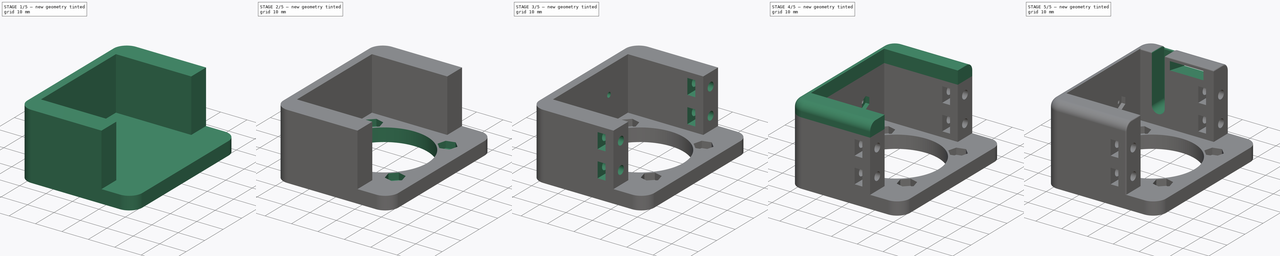
[diagram: build sequence overview — one tinted view per stage of 5, left to right]
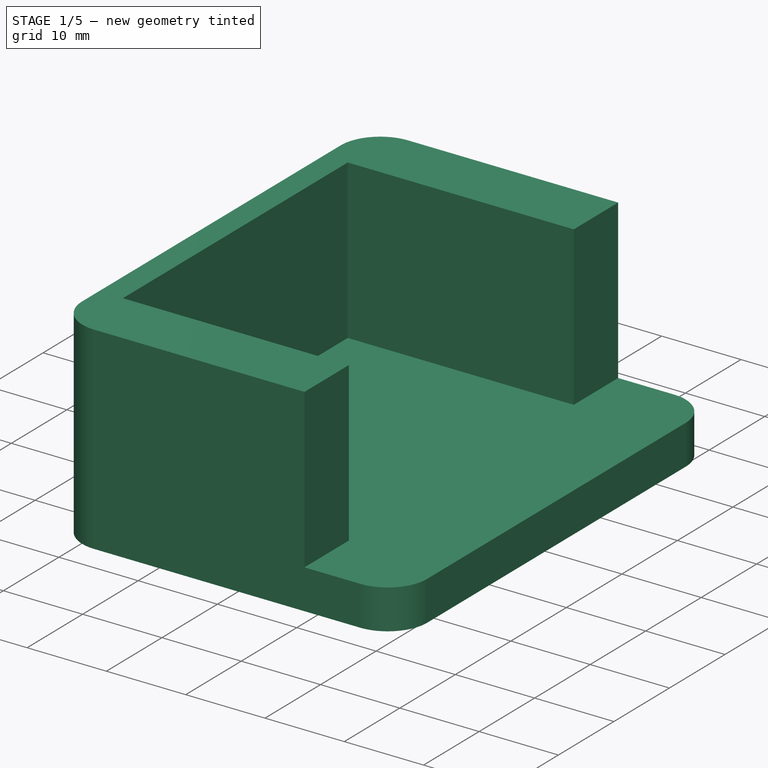
[diagram: stage 1 of 5 — iso view after this stage's code; geometry added in this stage tinted green]
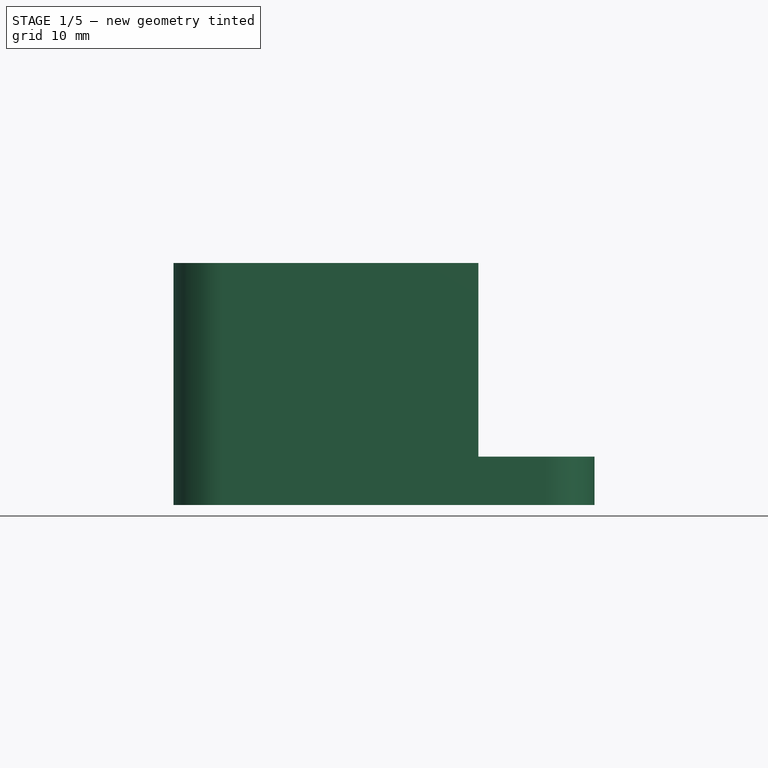
[diagram: stage 1 of 5 — front view after this stage's code; geometry added in this stage tinted green]
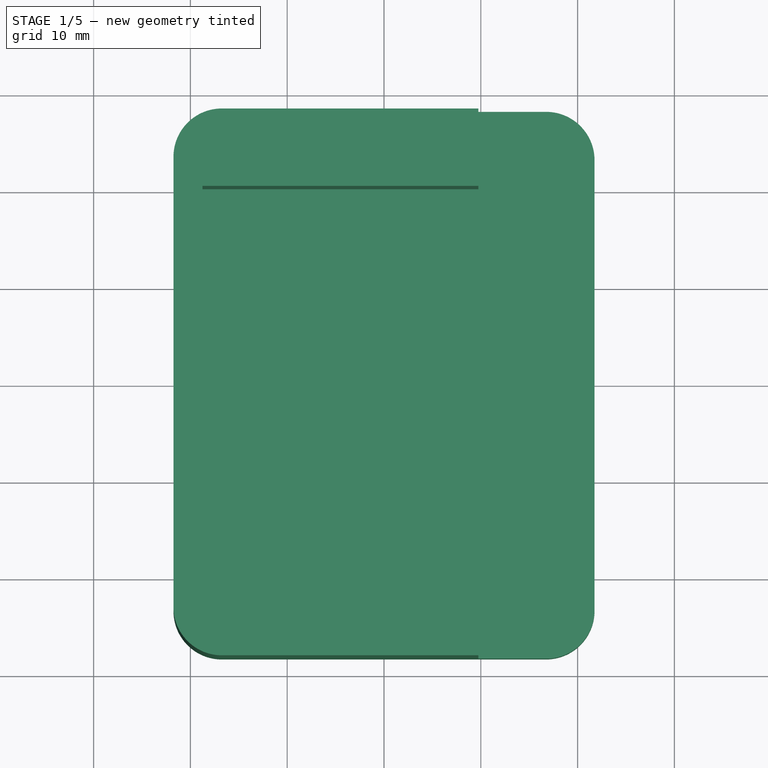
[diagram: stage 1 of 5 — top view after this stage's code; geometry added in this stage tinted green]
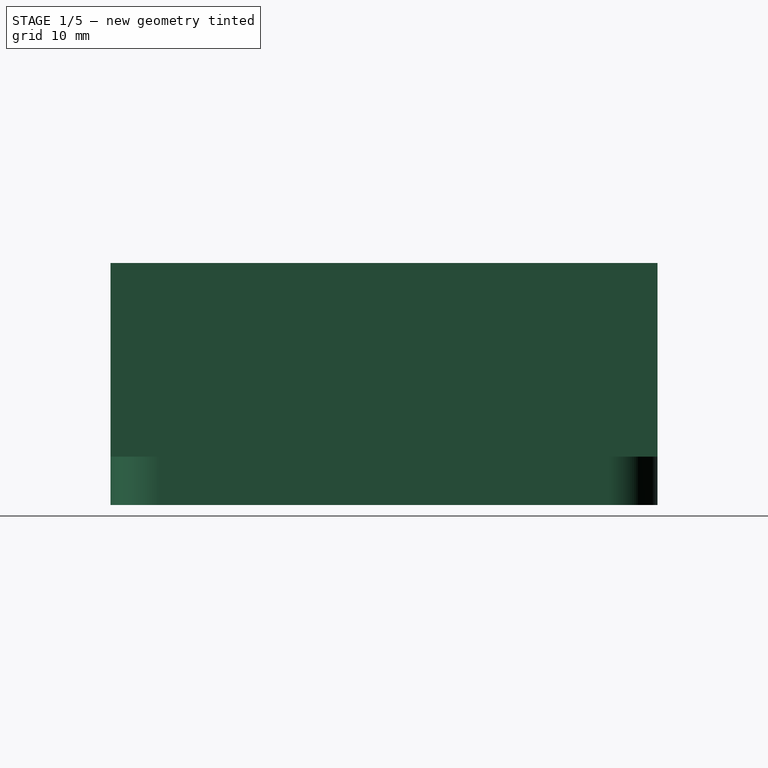
[diagram: stage 1 of 5 — right view after this stage's code; geometry added in this stage tinted green]
FCSTD DOCUMENT  (FreeCAD 0.18R4 (GitTag))
Label: Shoulder_Joint_Servomount
License: All rights reserved
LicenseURL: http://en.wikipedia.org/wiki/All_rights_reserved
objects: Sketcher::SketchObject×11, PartDesign::Pocket×10, PartDesign::Pad×3, PartDesign::Fillet×2, PartDesign::Body×1
note: 40 computed .brp shape members not serialized (recipe doc carries the construction recipe); baked Part::Feature solids carry a one-line shape summary decoded from their .brp

FEATURE [Sketcher::SketchObject] Sketch023
  MapMode = 5
  Support = -> [XY_Plane005]
  sketch-geometry (8):
    g0: LineSegment StartX=-16.75 StartY=28.25 StartZ=0 EndX=16.75 EndY=28.25 EndZ=0
    g1: LineSegment StartX=21.75 StartY=23.25 StartZ=0 EndX=21.75 EndY=-23.25 EndZ=0
    g2: LineSegment StartX=16.75 StartY=-28.25 StartZ=0 EndX=-16.75 EndY=-28.25 EndZ=0
    g3: LineSegment StartX=-21.75 StartY=-23.25 StartZ=0 EndX=-21.75 EndY=23.25 EndZ=0
    g4: ArcOfCircle CenterX=-16.75 CenterY=23.25 CenterZ=0 NormalX=0 NormalY=0 NormalZ=1 AngleXU=0 Radius=5 StartAngle=1.5708 EndAngle=3.14159
    g5: ArcOfCircle CenterX=16.75 CenterY=23.25 CenterZ=0 NormalX=0 NormalY=0 NormalZ=1 AngleXU=0 Radius=5 StartAngle=1e-16 EndAngle=1.5708
    g6: ArcOfCircle CenterX=16.75 CenterY=-23.25 CenterZ=0 NormalX=0 NormalY=0 NormalZ=1 AngleXU=0 Radius=5 StartAngle=4.71239 EndAngle=6.28319
    g7: ArcOfCircle CenterX=-16.75 CenterY=-23.25 CenterZ=0 NormalX=0 NormalY=0 NormalZ=1 AngleXU=0 Radius=5 StartAngle=3.14159 EndAngle=4.71239
  constraints (18):
    c: Horizontal(g2)
    c: Vertical(g1)
    c: Tangent(g3,g4) = 1.5708
    c: Tangent(g0,g4) = 1.5708
    c: Tangent(g0,g5) = 1.5708
    c: Tangent(g1,g5) = 1.5708
    c: Tangent(g1,g6) = 1.5708
    c: Tangent(g2,g6) = 1.5708
    c: Tangent(g2,g7) = 1.5708
    c: Tangent(g3,g7) = 1.5708
    c: Equal(g4,g5)
    c: Equal(g5,g7)
    c: Equal(g7,g6)
    c: Radius(g5) = 5
    c: DistanceY(g2,g0) = 56.5
    c: DistanceX(g3,g1) = 43.5
    c: Symmetric(g0,g0,g-2)
    c: Symmetric(g3,g3,g-1)
FEATURE [PartDesign::Pad] Pad004  label="Baseplate002"
  Length = 5
  Length2 = 100
  Profile = -> Sketch023
  Type = 0
FEATURE [PartDesign::Pad] Pad003  label="Baseplate Expansion"
  BaseFeature = -> Pad004
  Length = 20
  Length2 = 100
  Profile = -> Pad004 [Face10]
  Type = 0
FEATURE [Sketcher::SketchObject] Sketch026
  MapMode = 5
  Placement = pos=(0,0,25) rot=(0,0,1;0rad)
  Support = -> [Pad003]
  sketch-geometry (8):
    g0: LineSegment StartX=9.75 StartY=28.25 StartZ=0 EndX=9.75 EndY=20.25 EndZ=0
    g1: LineSegment StartX=9.75 StartY=20.25 StartZ=0 EndX=-18.75 EndY=20.25 EndZ=0
    g2: LineSegment StartX=-18.75 StartY=20.25 StartZ=0 EndX=-18.75 EndY=-20.25 EndZ=0
    g3: LineSegment StartX=-18.75 StartY=-20.25 StartZ=0 EndX=9.75 EndY=-20.25 EndZ=0
    g4: LineSegment StartX=9.75 StartY=-20.25 StartZ=0 EndX=9.75 EndY=-28.25 EndZ=0
    g5: LineSegment StartX=9.75 StartY=-28.25 StartZ=0 EndX=21.75 EndY=-28.25 EndZ=0
    g6: LineSegment StartX=21.75 StartY=-28.25 StartZ=0 EndX=21.75 EndY=28.25 EndZ=0
    g7: LineSegment StartX=21.75 StartY=28.25 StartZ=0 EndX=9.75 EndY=28.25 EndZ=0
  constraints (22):
    c: Vertical(g0)
    c: Coincident(g0,g1)
    c: Horizontal(g1)
    c: Coincident(g1,g2)
    c: Coincident(g2,g3)
    c: Horizontal(g3)
    c: Coincident(g3,g4)
    c: Vertical(g4)
    c: Coincident(g4,g5)
    c: Horizontal(g5)
    c: Coincident(g5,g6)
    c: Coincident(g6,g7)
    c: Coincident(g7,g0)
    c: Horizontal(g7)
    c: Equal(g7,g5)
    c: Symmetric(g6,g5,g-1)
    c: Symmetric(g1,g2,g-1)
    c: DistanceY(g6,g6) = 56.5
    c: DistanceX(g-1,g6) = 21.75
    c: DistanceX(g1,g-1) = 18.75
    c: DistanceY(g0,g0) = 8
    c: DistanceX(g1,g0) = 28.5
FEATURE [PartDesign::Pocket] Pocket018  label="Servo Pocket"
  BaseFeature = -> Pad003
  Length = 20
  Length2 = 100
  Profile = -> Sketch026
  Type = 0
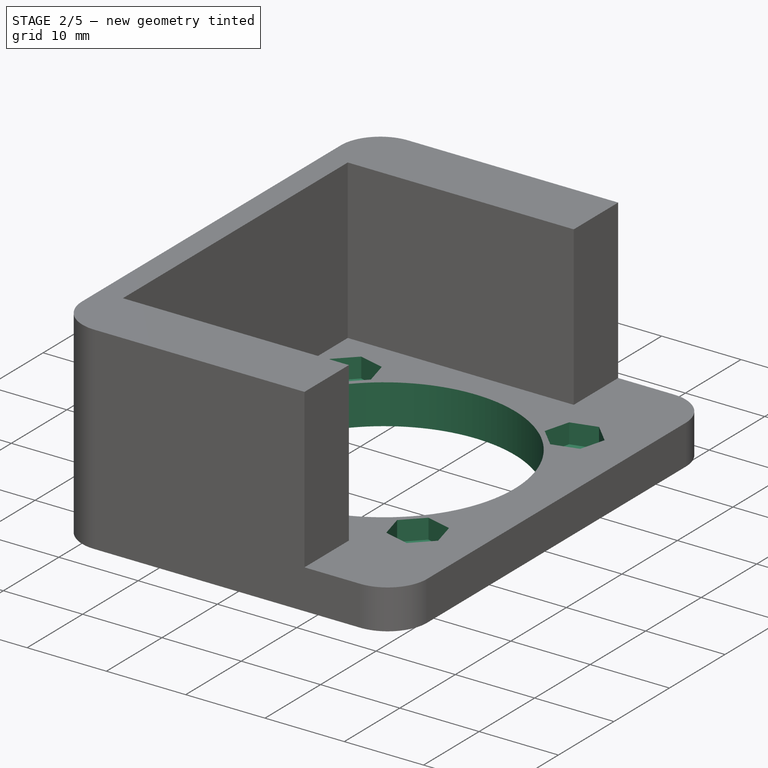
[diagram: stage 2 of 5 — iso view after this stage's code; geometry added in this stage tinted green]
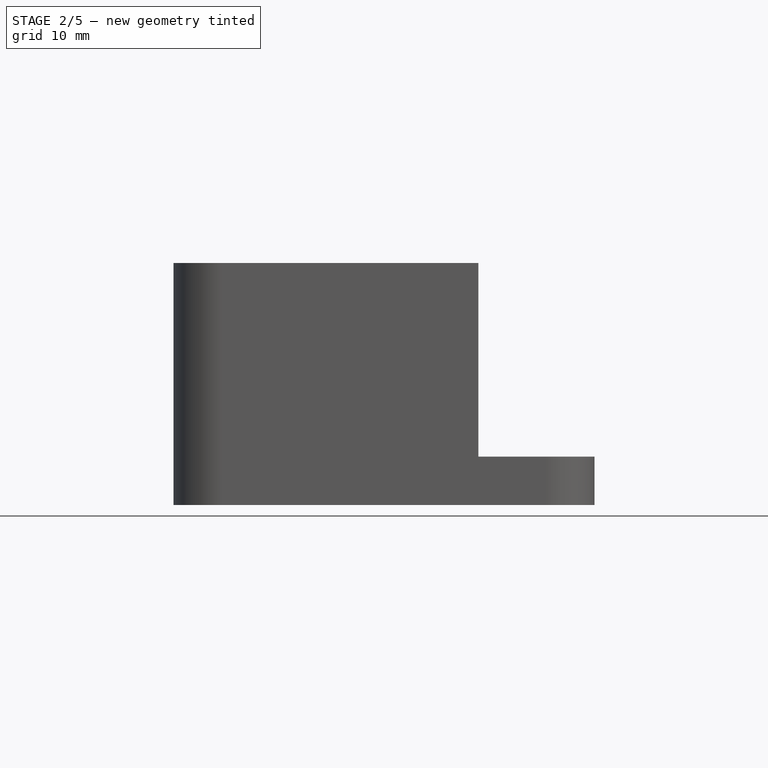
[diagram: stage 2 of 5 — front view after this stage's code; geometry added in this stage tinted green]
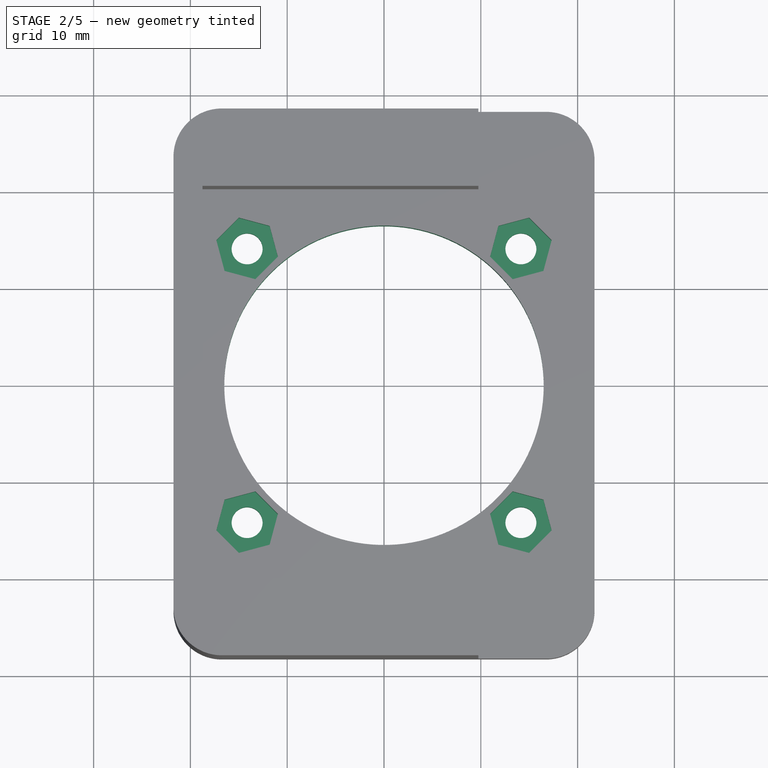
[diagram: stage 2 of 5 — top view after this stage's code; geometry added in this stage tinted green]
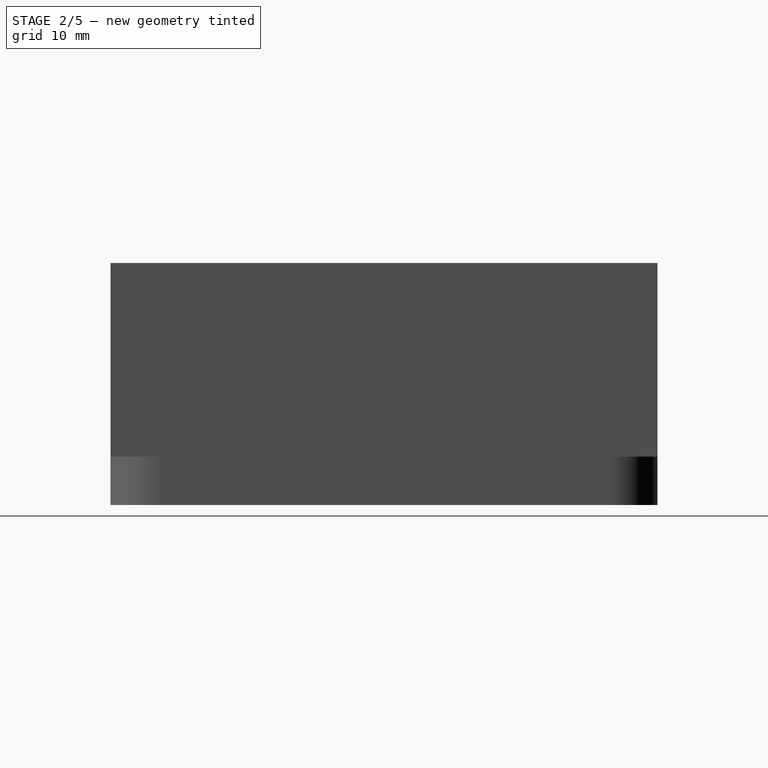
[diagram: stage 2 of 5 — right view after this stage's code; geometry added in this stage tinted green]
FEATURE [Sketcher::SketchObject] Sketch024
  MapMode = 5
  Placement = pos=(0,0,5) rot=(0,0,1;0rad)
  Support = -> [Pocket018]
  sketch-geometry (1):
    g0: Circle CenterX=0 CenterY=0 CenterZ=0 NormalX=0 NormalY=0 NormalZ=1 AngleXU=0 Radius=16.5
  constraints (2):
    c: Coincident(g0,g-1)
    c: Radius(g0) = 16.5
FEATURE [PartDesign::Pocket] Pocket017  label="Accesshole Servohorn Cap"
  BaseFeature = -> Pocket018
  Length = 5
  Length2 = 100
  Profile = -> Sketch024
  Type = 0
FEATURE [Sketcher::SketchObject] Sketch017
  MapMode = 5
  Placement = pos=(0,0,5) rot=(0,0,1;0rad)
  Support = -> [Pocket017]
  sketch-geometry (9):
    g0: Circle [constr] CenterX=0 CenterY=0 CenterZ=0 NormalX=0 NormalY=0 NormalZ=1 AngleXU=0 Radius=20
    g1: LineSegment [constr] StartX=-14.1421 StartY=14.1421 StartZ=0 EndX=14.1421 EndY=14.1421 EndZ=0
    g2: LineSegment [constr] StartX=14.1421 StartY=14.1421 StartZ=0 EndX=14.1421 EndY=-14.1421 EndZ=0
    g3: LineSegment [constr] StartX=14.1421 StartY=-14.1421 StartZ=0 EndX=-14.1421 EndY=-14.1421 EndZ=0
    g4: LineSegment [constr] StartX=-14.1421 StartY=-14.1421 StartZ=0 EndX=-14.1421 EndY=14.1421 EndZ=0
    g5: Circle CenterX=-14.1421 CenterY=14.1421 CenterZ=0 NormalX=0 NormalY=0 NormalZ=1 AngleXU=0 Radius=1.6
    g6: Circle CenterX=14.1421 CenterY=14.1421 CenterZ=0 NormalX=0 NormalY=0 NormalZ=1 AngleXU=0 Radius=1.6
    g7: Circle CenterX=14.1421 CenterY=-14.1421 CenterZ=0 NormalX=0 NormalY=0 NormalZ=1 AngleXU=0 Radius=1.6
    g8: Circle CenterX=-14.1421 CenterY=-14.1421 CenterZ=0 NormalX=0 NormalY=0 NormalZ=1 AngleXU=0 Radius=1.6
  constraints (22):
    c: Coincident(g0,g-1)
    c: Radius(g0) = 20
    c: Coincident(g1,g2)
    c: Coincident(g2,g3)
    c: Coincident(g3,g4)
    c: Coincident(g4,g1)
    c: Horizontal(g1)
    c: Horizontal(g3)
    c: Vertical(g2)
    c: Vertical(g4)
    c: PointOnObject(g1,g0)
    c: PointOnObject(g2,g0)
    c: PointOnObject(g1,g0)
    c: Equal(g1,g2)
    c: Coincident(g5,g1)
    c: Coincident(g6,g1)
    c: Coincident(g7,g2)
    c: Coincident(g8,g3)
    c: Radius(g5) = 1.6
    c: Equal(g5,g6)
    c: Equal(g5,g7)
    c: Equal(g5,g8)
FEATURE [PartDesign::Pocket] Pocket014  label="Screwholes Servohorn Cap"
  BaseFeature = -> Pocket017
  Length = 5
  Length2 = 100
  Profile = -> Sketch017
  Type = 0
FEATURE [Sketcher::SketchObject] Sketch021
  MapMode = 5
  Placement = pos=(0,0,5) rot=(0,0,1;0rad)
  Support = -> [Pocket014]
  sketch-geometry (35):
    g0: Circle [constr] CenterX=0 CenterY=0 CenterZ=0 NormalX=0 NormalY=0 NormalZ=1 AngleXU=0 Radius=20
    g1: LineSegment [constr] StartX=-14.1421 StartY=14.1421 StartZ=0 EndX=14.1421 EndY=-14.1421 EndZ=0
    g2: LineSegment [constr] StartX=14.1421 StartY=14.1421 StartZ=0 EndX=-14.1421 EndY=-14.1421 EndZ=0
    g3: LineSegment [constr] StartX=-14.1421 StartY=14.1421 StartZ=0 EndX=14.1421 EndY=14.1421 EndZ=0
    g4: LineSegment [constr] StartX=14.1421 StartY=14.1421 StartZ=0 EndX=14.1421 EndY=-14.1421 EndZ=0
    g5: LineSegment [constr] StartX=14.1421 StartY=-14.1421 StartZ=0 EndX=-14.1421 EndY=-14.1421 EndZ=0
    g6: LineSegment [constr] StartX=-14.1421 StartY=-14.1421 StartZ=0 EndX=-14.1421 EndY=14.1421 EndZ=0
    g7: LineSegment StartX=-11.8151 StartY=16.4692 StartZ=0 EndX=-14.9939 EndY=17.3209 EndZ=0
    g8: LineSegment StartX=-14.9939 StartY=17.3209 StartZ=0 EndX=-17.3209 EndY=14.9939 EndZ=0
    g9: LineSegment StartX=-17.3209 StartY=14.9939 StartZ=0 EndX=-16.4692 EndY=11.8151 EndZ=0
    g10: LineSegment StartX=-16.4692 StartY=11.8151 StartZ=0 EndX=-13.2904 EndY=10.9634 EndZ=0
    g11: LineSegment StartX=-13.2904 StartY=10.9634 StartZ=0 EndX=-10.9634 EndY=13.2904 EndZ=0
    g12: LineSegment StartX=-10.9634 StartY=13.2904 StartZ=0 EndX=-11.8151 EndY=16.4692 EndZ=0
    g13: Circle [constr] CenterX=-14.1421 CenterY=14.1421 CenterZ=0 NormalX=0 NormalY=0 NormalZ=1 AngleXU=0 Radius=3.2909
    g14: LineSegment StartX=14.9939 StartY=17.3209 StartZ=0 EndX=11.8151 EndY=16.4692 EndZ=0
    g15: LineSegment StartX=11.8151 StartY=16.4692 StartZ=0 EndX=10.9634 EndY=13.2904 EndZ=0
    g16: LineSegment StartX=10.9634 StartY=13.2904 StartZ=0 EndX=13.2904 EndY=10.9634 EndZ=0
    g17: LineSegment StartX=13.2904 StartY=10.9634 StartZ=0 EndX=16.4692 EndY=11.8151 EndZ=0
    g18: LineSegment StartX=16.4692 StartY=11.8151 StartZ=0 EndX=17.3209 EndY=14.9939 EndZ=0
    g19: LineSegment StartX=17.3209 StartY=14.9939 StartZ=0 EndX=14.9939 EndY=17.3209 EndZ=0
    g20: Circle [constr] CenterX=14.1421 CenterY=14.1421 CenterZ=0 NormalX=0 NormalY=0 NormalZ=1 AngleXU=0 Radius=3.2909
    g21: LineSegment StartX=-13.2904 StartY=-10.9634 StartZ=0 EndX=-16.4692 EndY=-11.8151 EndZ=0
    g22: LineSegment StartX=-16.4692 StartY=-11.8151 StartZ=0 EndX=-17.3209 EndY=-14.9939 EndZ=0
    g23: LineSegment StartX=-17.3209 StartY=-14.9939 StartZ=0 EndX=-14.9939 EndY=-17.3209 EndZ=0
    g24: LineSegment StartX=-14.9939 StartY=-17.3209 StartZ=0 EndX=-11.8151 EndY=-16.4692 EndZ=0
    g25: LineSegment StartX=-11.8151 StartY=-16.4692 StartZ=0 EndX=-10.9634 EndY=-13.2904 EndZ=0
    g26: LineSegment StartX=-10.9634 StartY=-13.2904 StartZ=0 EndX=-13.2904 EndY=-10.9634 EndZ=0
    g27: Circle [constr] CenterX=-14.1421 CenterY=-14.1421 CenterZ=0 NormalX=0 NormalY=0 NormalZ=1 AngleXU=0 Radius=3.2909
    g28: LineSegment StartX=16.4692 StartY=-11.8151 StartZ=0 EndX=13.2904 EndY=-10.9634 EndZ=0
    g29: LineSegment StartX=13.2904 StartY=-10.9634 StartZ=0 EndX=10.9634 EndY=-13.2904 EndZ=0
    g30: LineSegment StartX=10.9634 StartY=-13.2904 StartZ=0 EndX=11.8151 EndY=-16.4692 EndZ=0
    g31: LineSegment StartX=11.8151 StartY=-16.4692 StartZ=0 EndX=14.9939 EndY=-17.3209 EndZ=0
    g32: LineSegment StartX=14.9939 StartY=-17.3209 StartZ=0 EndX=17.3209 EndY=-14.9939 EndZ=0
    g33: LineSegment StartX=17.3209 StartY=-14.9939 StartZ=0 EndX=16.4692 EndY=-11.8151 EndZ=0
    g34: Circle [constr] CenterX=14.1421 CenterY=-14.1421 CenterZ=0 NormalX=0 NormalY=0 NormalZ=1 AngleXU=0 Radius=3.2909
  constraints (84):
    c: Coincident(g0,g-1)
    c: Radius(g0) = 20
    c: PointOnObject(g1,g0)
    c: PointOnObject(g1,g0)
    c: PointOnObject(g2,g0)
    c: PointOnObject(g2,g0)
    c: PointOnObject(g-1,g2)
    c: PointOnObject(g-1,g1)
    c: Perpendicular(g1,g2)
    c: Coincident(g3,g4)
    c: Coincident(g4,g5)
    c: Coincident(g5,g6)
    c: Coincident(g6,g3)
    c: Horizontal(g3)
    c: Horizontal(g5)
    c: Vertical(g4)
    c: Vertical(g6)
    c: Coincident(g3,g1)
    c: Coincident(g4,g1)
    c: Equal(g3,g4)
    c: Coincident(g7,g8)
    c: Coincident(g8,g9)
    c: Coincident(g9,g10)
    c: Coincident(g10,g11)
    c: Coincident(g11,g12)
    c: Coincident(g12,g7)
    c: Equal(g7, g8-g12) x5
    c: PointOnObject(g7,g13)
    c: PointOnObject(g8,g13)
    c: PointOnObject(g9,g13)
    c: PointOnObject(g10,g13)
    c: PointOnObject(g11,g13)
    c: PointOnObject(g12,g13)
    c: Coincident(g13,g1)
    c: Coincident(g14,g15)
    c: Coincident(g15,g16)
    c: Coincident(g16,g17)
    c: Coincident(g17,g18)
    c: Coincident(g18,g19)
    c: Coincident(g19,g14)
    c: Equal(g14, g15-g19) x5
    c: PointOnObject(g14,g20)
    c: PointOnObject(g15,g20)
    c: PointOnObject(g16,g20)
    c: PointOnObject(g17,g20)
    c: PointOnObject(g18,g20)
    c: PointOnObject(g19,g20)
    c: Coincident(g20,g2)
    c: Coincident(g21,g22)
    c: Coincident(g22,g23)
    c: Coincident(g23,g24)
    c: Coincident(g24,g25)
    c: Coincident(g25,g26)
    c: Coincident(g26,g21)
    c: Equal(g21, g22-g26) x5
    c: PointOnObject(g21,g27)
    c: PointOnObject(g22,g27)
    c: PointOnObject(g23,g27)
    c: PointOnObject(g24,g27)
    c: PointOnObject(g25,g27)
    c: PointOnObject(g26,g27)
    c: Coincident(g27,g2)
    c: Perpendicular(g1,g11)
    c: Perpendicular(g2,g16)
    c: Perpendicular(g2,g26)
    c: Coincident(g28,g29)
    c: Coincident(g29,g30)
    c: Coincident(g30,g31)
    c: Coincident(g31,g32)
    c: Coincident(g32,g33)
    c: Coincident(g33,g28)
    c: Equal(g28, g29-g33) x5
    c: PointOnObject(g28,g34)
    c: PointOnObject(g29,g34)
    c: PointOnObject(g30,g34)
    c: PointOnObject(g31,g34)
    c: PointOnObject(g32,g34)
    c: PointOnObject(g33,g34)
    c: Coincident(g34,g1)
    c: Perpendicular(g1,g29)
    c: Equal(g20,g13)
    c: Equal(g13,g27)
    c: Equal(g27,g34)
    c: Distance(g15,g14) = 5.7
FEATURE [PartDesign::Pocket] Pocket019  label="Nutholes Servohorn Cap"
  BaseFeature = -> Pocket014
  Length = 2.5
  Length2 = 100
  Profile = -> Sketch021
  Type = 0
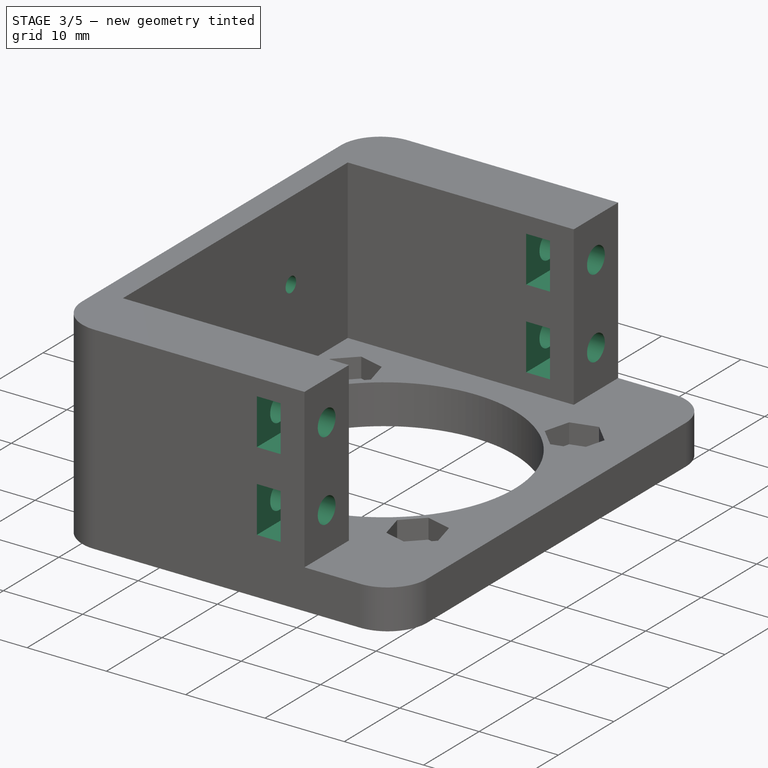
[diagram: stage 3 of 5 — iso view after this stage's code; geometry added in this stage tinted green]
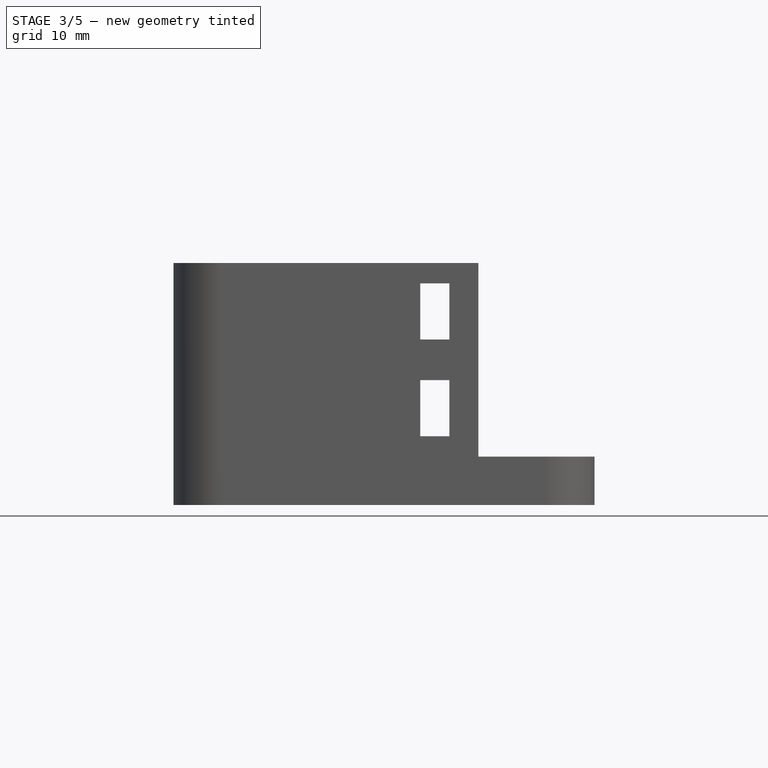
[diagram: stage 3 of 5 — front view after this stage's code; geometry added in this stage tinted green]
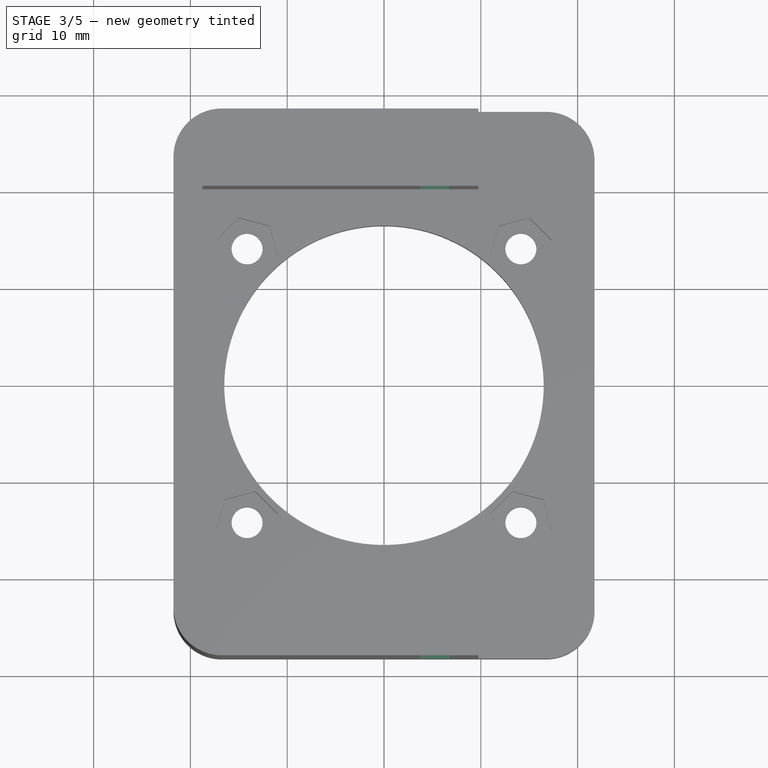
[diagram: stage 3 of 5 — top view after this stage's code; geometry added in this stage tinted green]
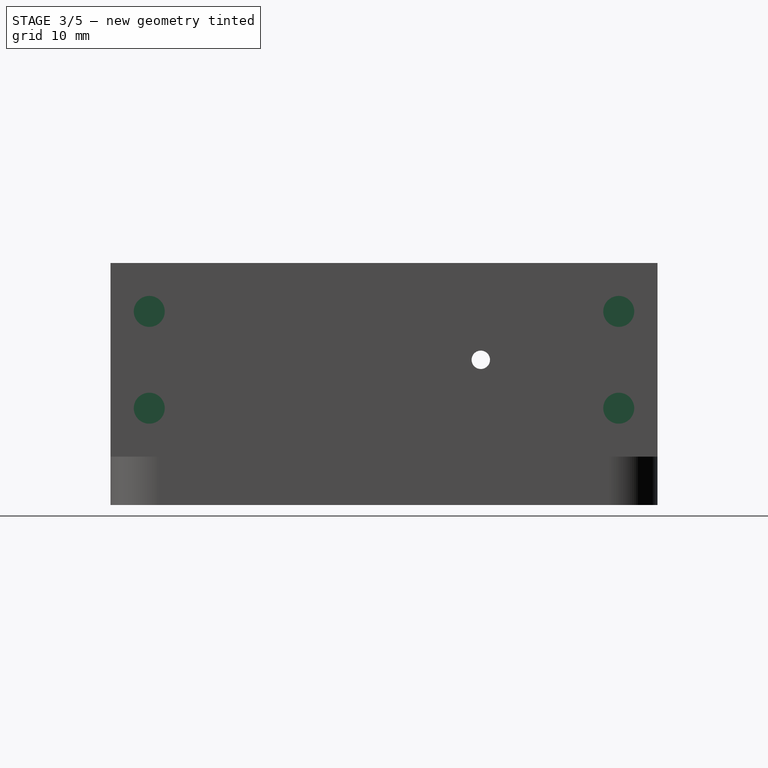
[diagram: stage 3 of 5 — right view after this stage's code; geometry added in this stage tinted green]
FEATURE [Sketcher::SketchObject] Sketch020
  MapMode = 5
  Placement = pos=(0,-28.25,0) rot=(1,0,0;1.5708rad)
  Support = -> [Pocket019]
  sketch-geometry (8):
    g0: LineSegment StartX=3.75 StartY=22.9 StartZ=0 EndX=6.75 EndY=22.9 EndZ=0
    g1: LineSegment StartX=6.75 StartY=22.9 StartZ=0 EndX=6.75 EndY=17.1 EndZ=0
    g2: LineSegment StartX=6.75 StartY=17.1 StartZ=0 EndX=3.75 EndY=17.1 EndZ=0
    g3: LineSegment StartX=3.75 StartY=17.1 StartZ=0 EndX=3.75 EndY=22.9 EndZ=0
    g4: LineSegment StartX=3.75 StartY=12.9 StartZ=0 EndX=6.75 EndY=12.9 EndZ=0
    g5: LineSegment StartX=6.75 StartY=12.9 StartZ=0 EndX=6.75 EndY=7.1 EndZ=0
    g6: LineSegment StartX=6.75 StartY=7.1 StartZ=0 EndX=3.75 EndY=7.1 EndZ=0
    g7: LineSegment StartX=3.75 StartY=7.1 StartZ=0 EndX=3.75 EndY=12.9 EndZ=0
  constraints (24):
    c: Coincident(g0,g1)
    c: Coincident(g1,g2)
    c: Coincident(g2,g3)
    c: Coincident(g3,g0)
    c: Horizontal(g0)
    c: Horizontal(g2)
    c: Vertical(g1)
    c: Vertical(g3)
    c: Coincident(g4,g5)
    c: Coincident(g5,g6)
    c: Coincident(g6,g7)
    c: Coincident(g7,g4)
    c: Horizontal(g4)
    c: Horizontal(g6)
    c: Vertical(g5)
    c: Vertical(g7)
    c: Equal(g0,g4)
    c: Equal(g1,g5)
    c: DistanceY(g1,g1) = 5.8
    c: DistanceY(g4,g1) = 4.2
    c: DistanceX(g-1,g5) = 6.75
    c: DistanceX(g0,g0) = 3
    c: Vertical(g4,g1)
    c: DistanceY(g-1,g5) = 7.1
FEATURE [PartDesign::Pocket] Pocket013  label="Nutholes Servo Pocket"
  BaseFeature = -> Pocket019
  Length = 56.5
  Length2 = 100
  Profile = -> Sketch020
  Type = 0
FEATURE [Sketcher::SketchObject] Sketch022
  MapMode = 5
  Placement = pos=(9.75,0,0) rot=(0.57735,0.57735,0.57735;2.0944rad)
  Support = -> [Pocket013]
  sketch-geometry (4):
    g0: Circle CenterX=-24.25 CenterY=20 CenterZ=0 NormalX=0 NormalY=0 NormalZ=1 AngleXU=0 Radius=1.6
    g1: Circle CenterX=-24.25 CenterY=10 CenterZ=0 NormalX=0 NormalY=0 NormalZ=1 AngleXU=0 Radius=1.6
    g2: Circle CenterX=24.25 CenterY=20 CenterZ=0 NormalX=0 NormalY=0 NormalZ=1 AngleXU=0 Radius=1.6
    g3: Circle CenterX=24.25 CenterY=10 CenterZ=0 NormalX=0 NormalY=0 NormalZ=1 AngleXU=0 Radius=1.6
  constraints (11):
    c: Vertical(g3,g2)
    c: Vertical(g1,g0)
    c: Symmetric(g0,g2,g-2)
    c: Radius(g0) = 1.6
    c: Equal(g0,g1)
    c: Equal(g0,g2)
    c: Equal(g0,g3)
    c: DistanceY(g3,g2) = 10
    c: Horizontal(g1,g3)
    c: DistanceY(g-1,g3) = 10
    c: DistanceX(g0,g2) = 48.5
FEATURE [PartDesign::Pocket] Pocket020  label="Screwholes Servo Pocket"
  BaseFeature = -> Pocket013
  Length = 18
  Length2 = 100
  Profile = -> Sketch022
  Type = 0
FEATURE [Sketcher::SketchObject] Sketch019
  MapMode = 5
  Placement = pos=(-18.75,0,0) rot=(0.57735,0.57735,0.57735;2.0944rad)
  Support = -> [Pocket020]
  sketch-geometry (1):
    g0: Circle CenterX=10 CenterY=15 CenterZ=0 NormalX=0 NormalY=0 NormalZ=1 AngleXU=0 Radius=0.95
  constraints (3):
    c: DistanceY(g-1,g0) = 15
    c: DistanceX(g-1,g0) = 10
    c: Radius(g0) = 0.95
FEATURE [PartDesign::Pocket] Pocket016  label="Screwhole Ball Bearing Pin"
  BaseFeature = -> Pocket020
  Length = 3
  Length2 = 100
  Profile = -> Sketch019
  Type = 0
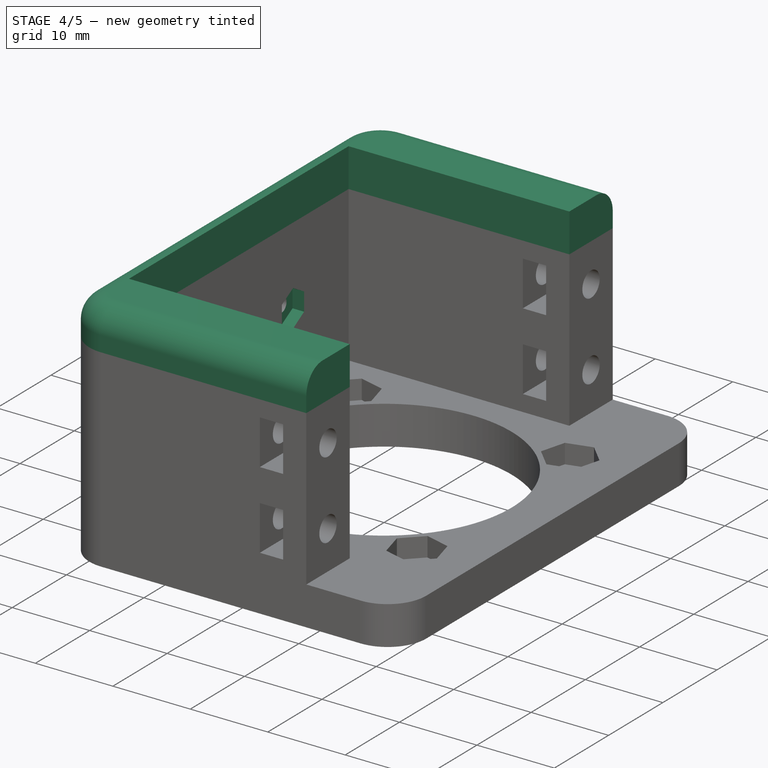
[diagram: stage 4 of 5 — iso view after this stage's code; geometry added in this stage tinted green]
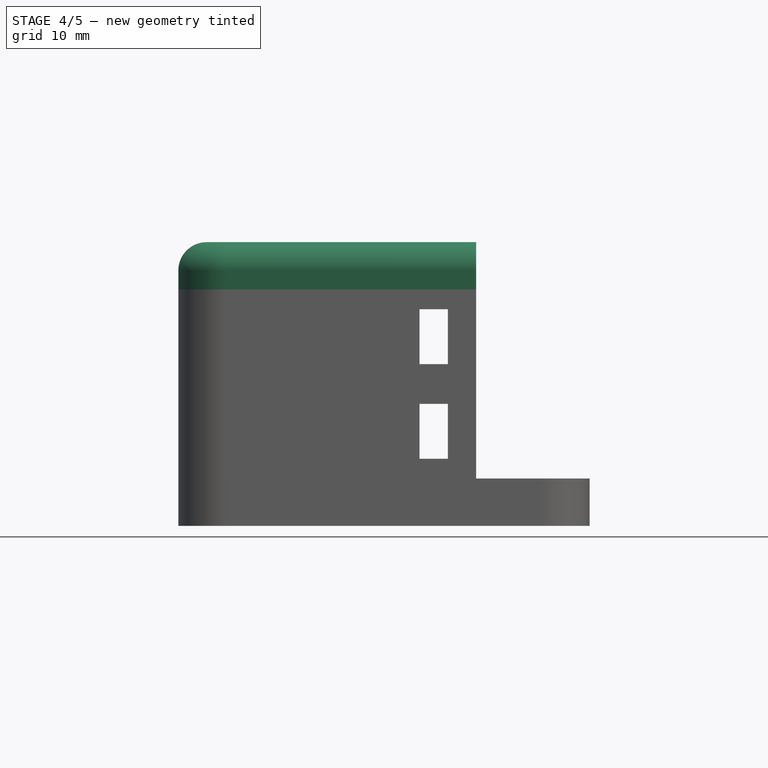
[diagram: stage 4 of 5 — front view after this stage's code; geometry added in this stage tinted green]
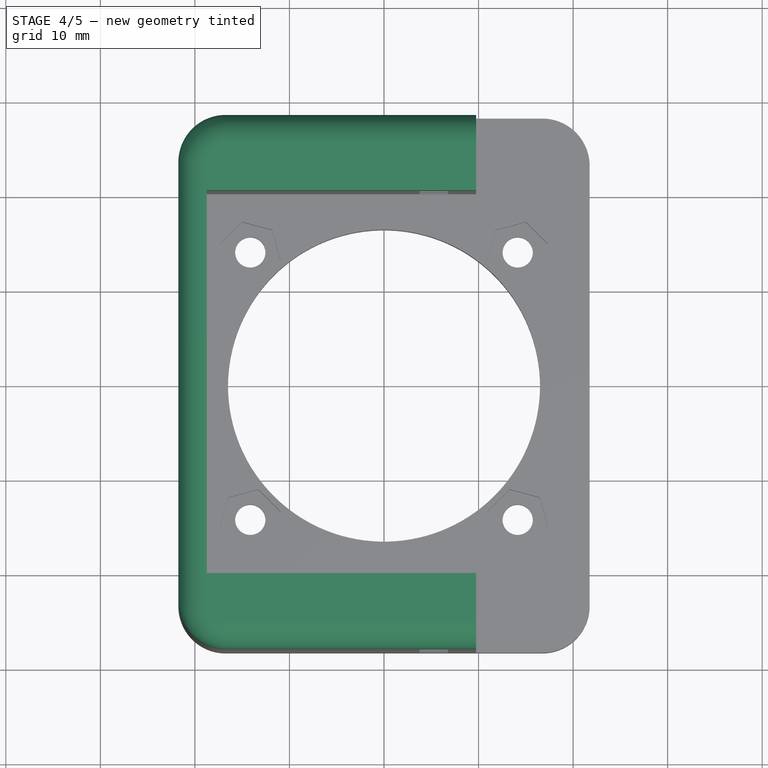
[diagram: stage 4 of 5 — top view after this stage's code; geometry added in this stage tinted green]
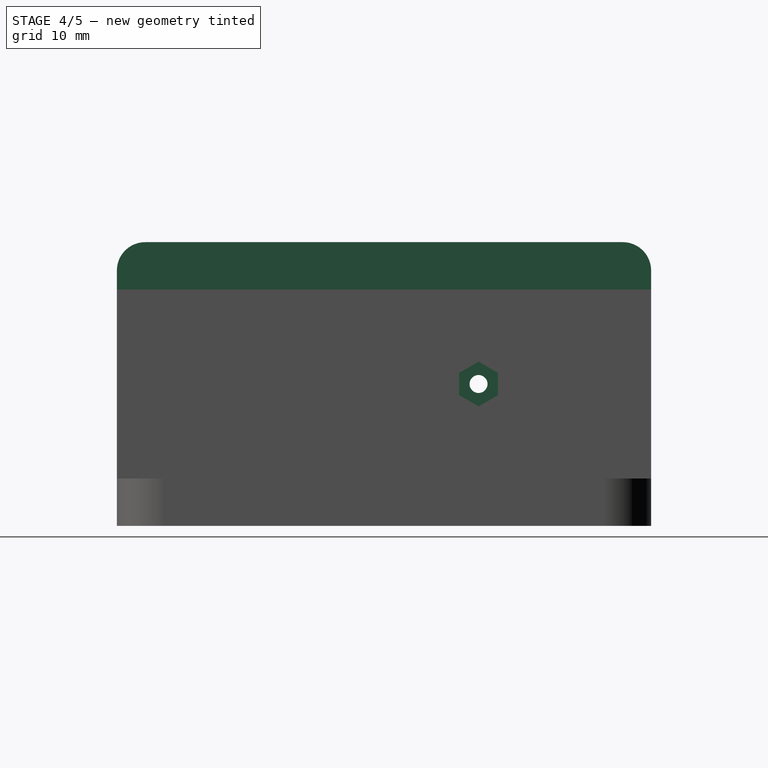
[diagram: stage 4 of 5 — right view after this stage's code; geometry added in this stage tinted green]
FEATURE [Sketcher::SketchObject] Sketch018
  MapMode = 5
  Placement = pos=(-18.75,0,0) rot=(0.57735,0.57735,0.57735;2.0944rad)
  Support = -> [Pocket016]
  sketch-geometry (7):
    g0: LineSegment StartX=12.05 StartY=13.8164 StartZ=0 EndX=12.05 EndY=16.1836 EndZ=0
    g1: LineSegment StartX=12.05 StartY=16.1836 StartZ=0 EndX=10 EndY=17.3671 EndZ=0
    g2: LineSegment StartX=10 StartY=17.3671 StartZ=0 EndX=7.95 EndY=16.1836 EndZ=0
    g3: LineSegment StartX=7.95 StartY=16.1836 StartZ=0 EndX=7.95 EndY=13.8164 EndZ=0
    g4: LineSegment StartX=7.95 StartY=13.8164 StartZ=0 EndX=10 EndY=12.6329 EndZ=0
    g5: LineSegment StartX=10 StartY=12.6329 StartZ=0 EndX=12.05 EndY=13.8164 EndZ=0
    g6: Circle [constr] CenterX=10 CenterY=15 CenterZ=0 NormalX=0 NormalY=0 NormalZ=1 AngleXU=0 Radius=2.36714
  constraints (17):
    c: Coincident(g0,g1)
    c: Coincident(g1,g2)
    c: Coincident(g2,g3)
    c: Coincident(g3,g4)
    c: Coincident(g4,g5)
    c: Coincident(g5,g0)
    c: Equal(g0, g1-g5) x5
    c: PointOnObject(g0,g6)
    c: PointOnObject(g1,g6)
    c: PointOnObject(g2,g6)
    c: PointOnObject(g3,g6)
    c: PointOnObject(g4,g6)
    c: PointOnObject(g5,g6)
    c: Vertical(g3)
    c: DistanceX(g-1,g6) = 10
    c: DistanceY(g-1,g6) = 15
    c: Distance(g0,g4) = 4.1
FEATURE [PartDesign::Pocket] Pocket015  label="Nuthole Ball Bearing Pin"
  BaseFeature = -> Pocket016
  Length = 1.5
  Length2 = 100
  Profile = -> Sketch018
  Type = 0
FEATURE [Sketcher::SketchObject] Sketch032
  AttachmentOffset = pos=(0,0,-1) rot=(0,0,1;0rad)
  MapMode = 5
  Placement = pos=(5.75,0,0) rot=(0.57735,0.57735,0.57735;2.0944rad)
  sketch-geometry (4):
    g0: LineSegment StartX=28.25 StartY=24.0894 StartZ=0 EndX=28.25 EndY=27.3387 EndZ=0
    g1: LineSegment StartX=28.25 StartY=27.3387 StartZ=0 EndX=20.25 EndY=28.7494 EndZ=0
    g2: LineSegment StartX=20.25 StartY=28.7494 StartZ=0 EndX=20.25 EndY=25.5 EndZ=0
    g3: LineSegment StartX=20.25 StartY=25.5 StartZ=0 EndX=28.25 EndY=24.0894 EndZ=0
  constraints (12):
    c: Vertical(g0)
    c: Coincident(g0,g1)
    c: Coincident(g1,g2)
    c: Vertical(g2)
    c: Coincident(g2,g3)
    c: Coincident(g3,g0)
    c: Parallel(g3,g1)
    c: Distance(g2,g1) = 3.2
    c: DistanceY(g-1,g2) = 25.5
    c: DistanceX(g-1,g2) = 20.25
    c: DistanceX(g2,g0) = 8
    c: Angle(g3) = -0.174533
FEATURE [PartDesign::Pad] Pad
  BaseFeature = -> Pocket015
  Length = 5
  Length2 = 100
  Profile = -> Pocket015 [Face18]
  Type = 0
FEATURE [PartDesign::Fillet] Fillet
  Base = -> Pad [Edge138]
  BaseFeature = -> Pad
  Radius = 2.99
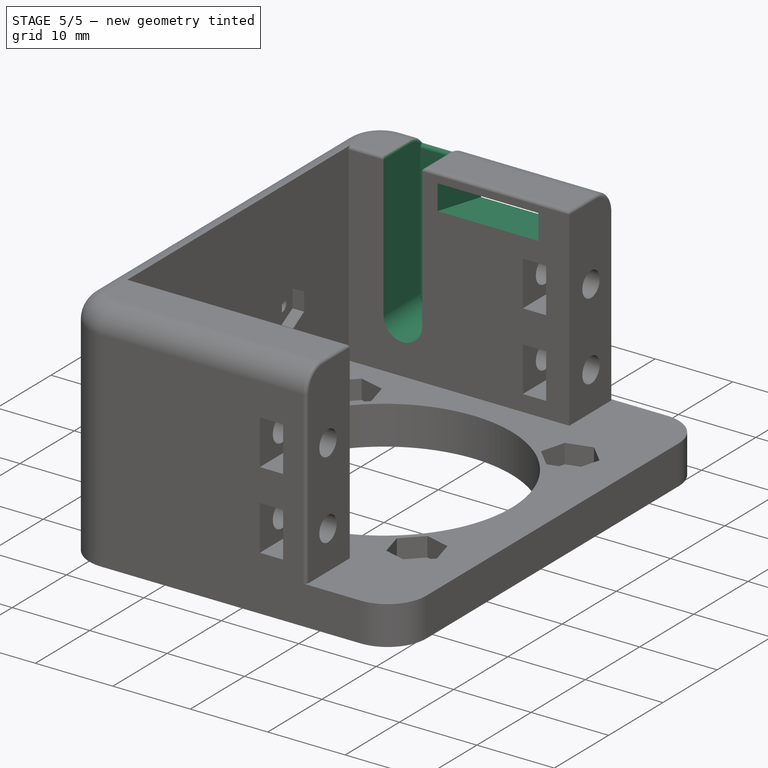
[diagram: stage 5 of 5 — iso view after this stage's code; geometry added in this stage tinted green]
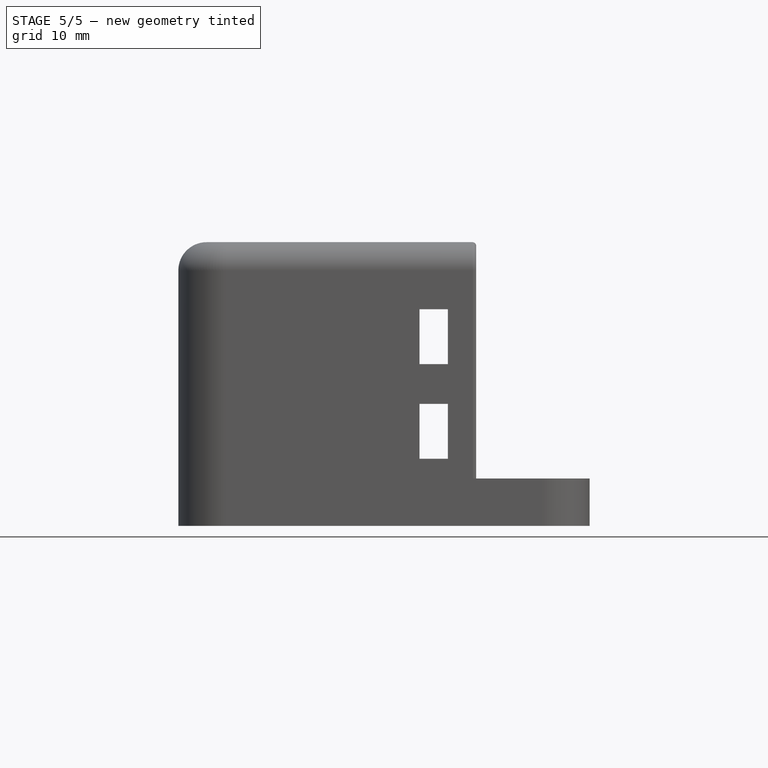
[diagram: stage 5 of 5 — front view after this stage's code; geometry added in this stage tinted green]
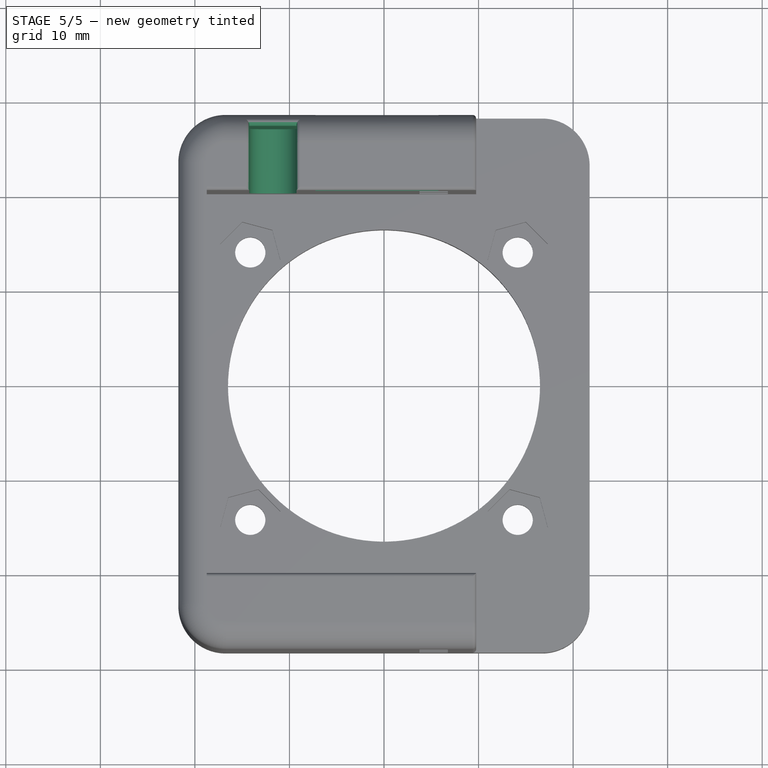
[diagram: stage 5 of 5 — top view after this stage's code; geometry added in this stage tinted green]
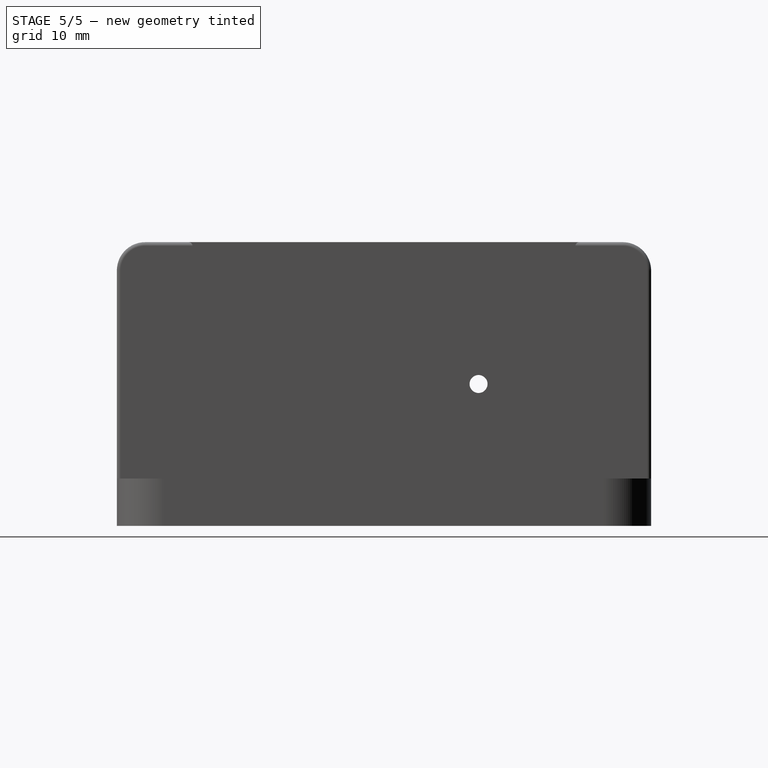
[diagram: stage 5 of 5 — right view after this stage's code; geometry added in this stage tinted green]
FEATURE [Sketcher::SketchObject] Sketch
  MapMode = 5
  Placement = pos=(0,20.25,0) rot=(1,0,0;1.5708rad)
  Support = -> [Fillet]
  sketch-geometry (4):
    g0: ArcOfCircle CenterX=-11.75 CenterY=11.5 CenterZ=0 NormalX=0 NormalY=0 NormalZ=1 AngleXU=0 Radius=2.5 StartAngle=3.14159 EndAngle=6.28319
    g1: LineSegment StartX=-14.25 StartY=11.5 StartZ=0 EndX=-14.25 EndY=30 EndZ=0
    g2: LineSegment StartX=-14.25 StartY=30 StartZ=0 EndX=-9.25 EndY=30 EndZ=0
    g3: LineSegment StartX=-9.25 StartY=30 StartZ=0 EndX=-9.25 EndY=11.5 EndZ=0
  constraints (12):
    c: Tangent(g0,g1) = 1.5708
    c: Coincident(g1,g2)
    c: Horizontal(g2)
    c: Coincident(g2,g3)
    c: Coincident(g3,g0)
    c: Vertical(g3)
    c: Vertical(g1)
    c: DistanceX(g0,g-1) = 11.75
    c: DistanceY(g-1,g0) = 11.5
    c: DistanceY(g-1,g2) = 30
    c: DistanceX(g2,g2) = 5
    c: Horizontal(g0,g0)
FEATURE [PartDesign::Pocket] Pocket
  BaseFeature = -> Fillet
  Length = 6.8
  Length2 = 100
  Profile = -> Sketch
  Type = 0
FEATURE [PartDesign::Fillet] Fillet001
  Base = -> Pocket [Edge69,Edge29,Edge157,Edge26,Edge28,Edge158,Edge25,Edge102]
  BaseFeature = -> Pocket
  Radius = 0.4
FEATURE [PartDesign::Pocket] Pocket021
  BaseFeature = -> Fillet001
  Length = 13
  Length2 = 100
  Profile = -> Sketch032
  Type = 0
FEATURE [PartDesign::Body] Body005  label="Shoulder_Joint_Servomount"
  Group = -> [Sketch023,Pad004,Pad003,Sketch026,Pocket018,Sketch024,Pocket017,Sketch017,Pocket014,Sketch021,Pocket019,Sketch020,Pocket013,Sketch022,Pocket020,Sketch019,Pocket016,Sketch018,Pocket015,Sketch032,Pad,Fillet,Sketch,Pocket,Fillet001,Pocket021]
  Origin = -> Origin005
  Placement = pos=(15,2.9e-14,-10) rot=(0,0,1;0rad)
  Tip = -> Pocket021
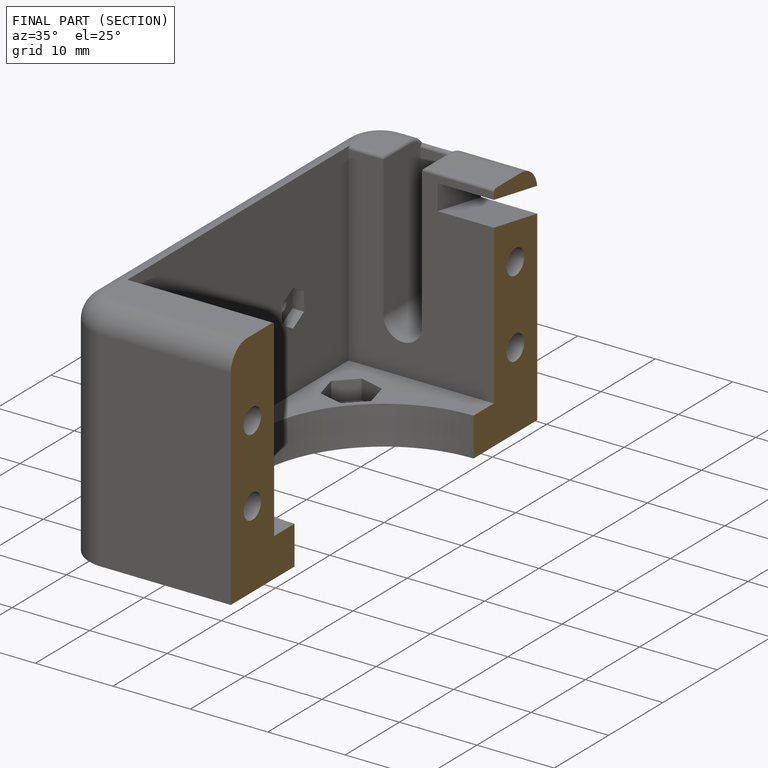
[diagram: finished part — half-section view (interior)]
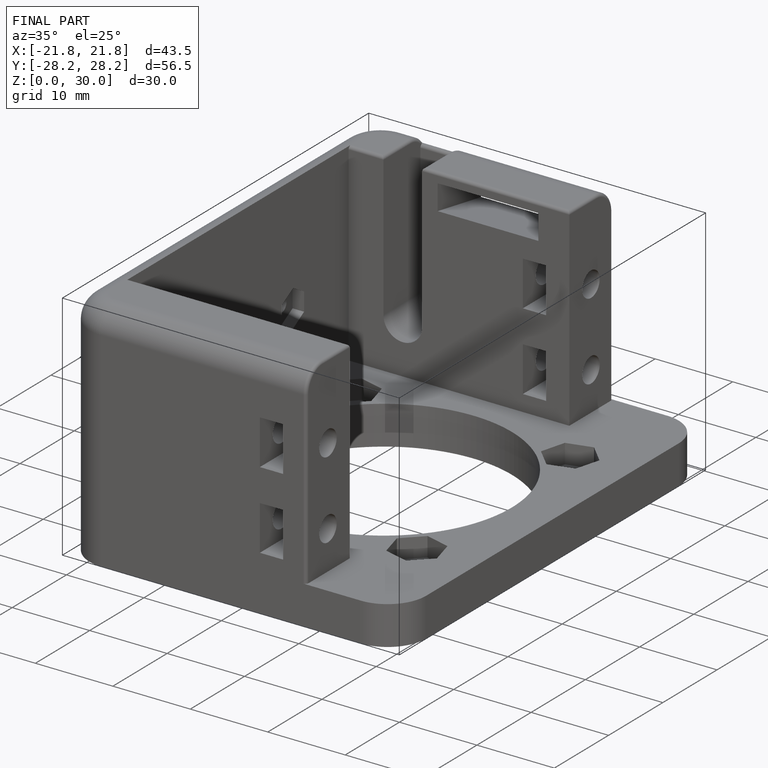
[diagram: finished part — iso view with bounding-box wireframe]
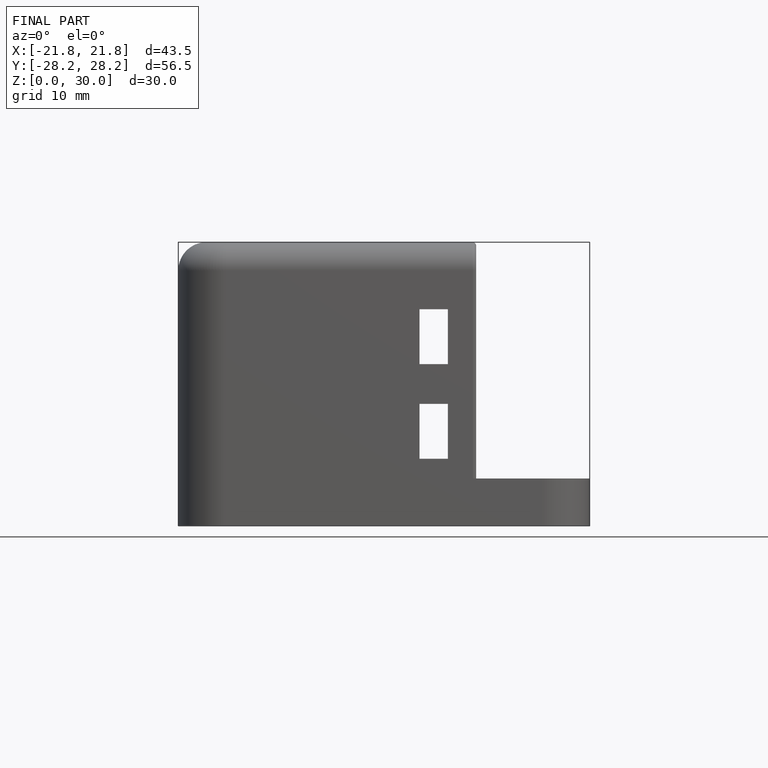
[diagram: finished part — front view with bounding-box wireframe]
